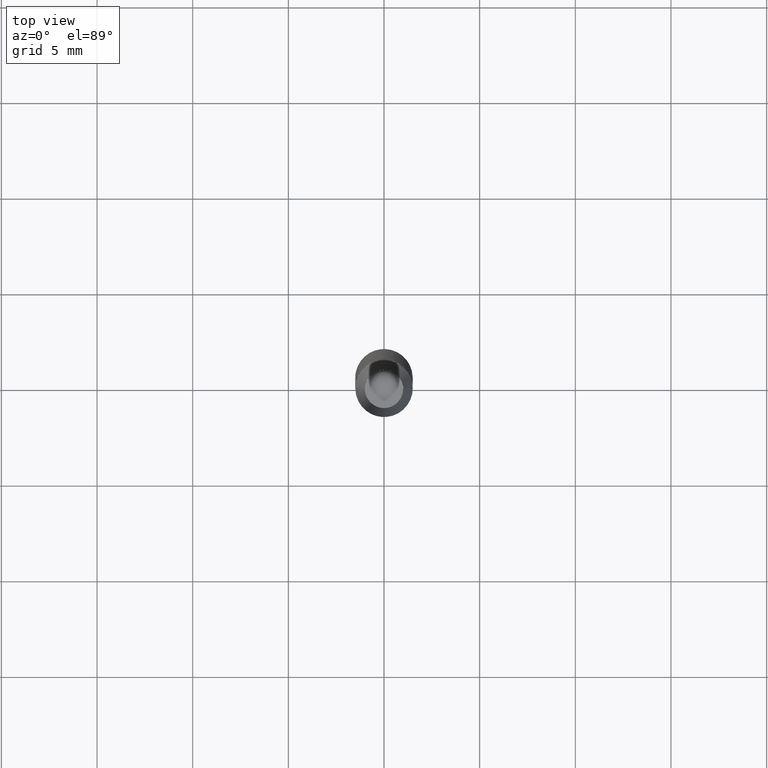
[diagram: clean part render]
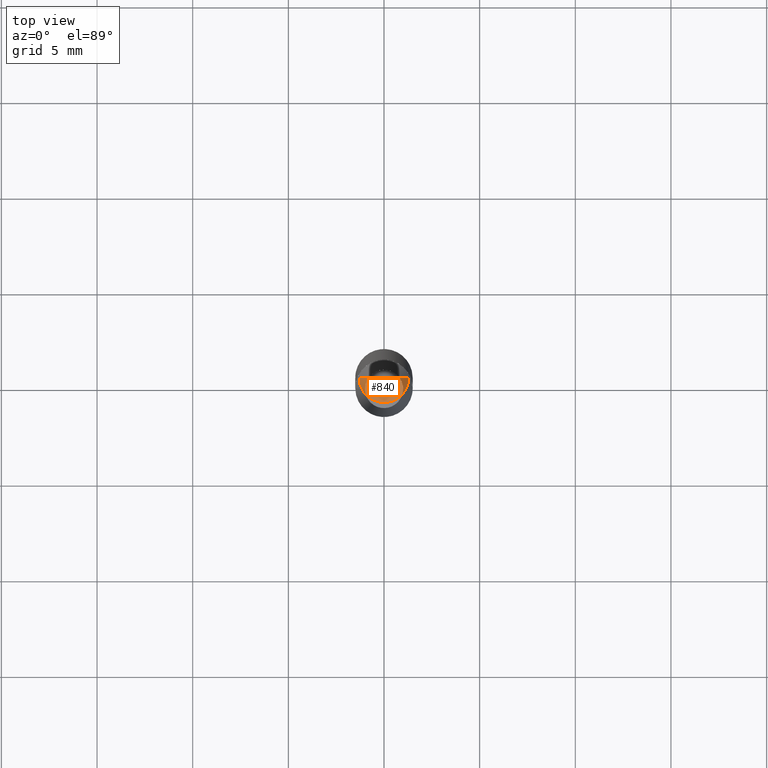
[diagram: same view with one face highlighted and labeled with its STEP entity id]
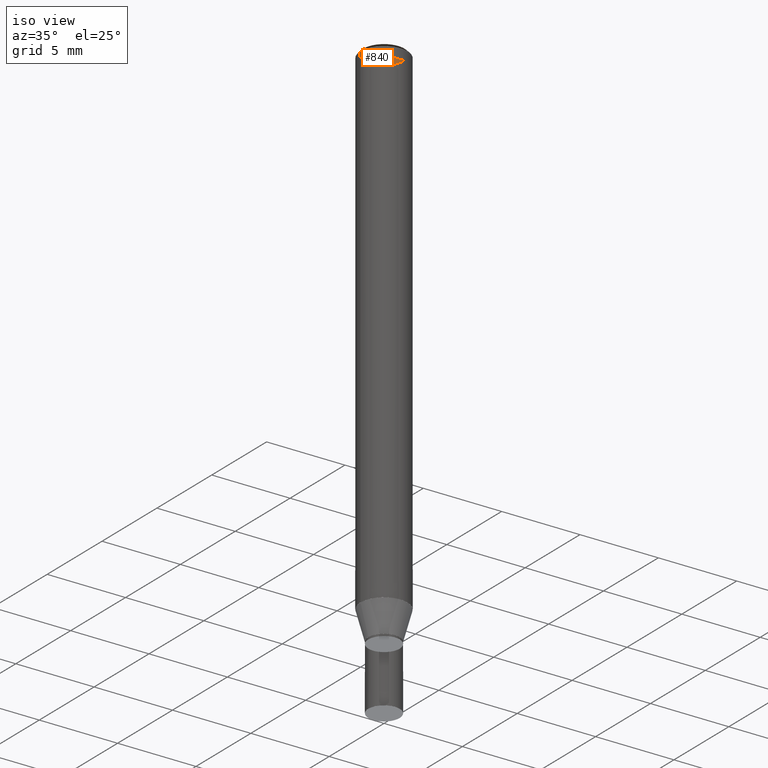
[diagram: same view with one face highlighted and labeled with its STEP entity id]
A machine part, top view. The second image highlights one B-rep face of the part: STEP entity #840.
A second angle (iso view) of the same face is appended — the face is thin or edge-on in the first view.
In plain terms, the highlighted face is a freeform B-spline surface patch.
Its self-contained STEP definition (entity closure, byte-faithful):
#485=CARTESIAN_POINT('',(1.3,0.0,32.0));
#489=CARTESIAN_POINT('',(-1.3,0.0,32.0));
#490=CARTESIAN_POINT('',(0.0,0.0,32.0));
#500=CARTESIAN_POINT('',(-1.3,-1.3,32.0));
#501=CARTESIAN_POINT('',(0.0,-1.3,32.0));
#502=CARTESIAN_POINT('',(1.3,-1.3,32.0));
#825=(
BOUNDED_SURFACE()
B_SPLINE_SURFACE(1,2,(
(#489,#500,#501,#502,#485),
(#490,#490,#490,#490,#490)
), .UNSPECIFIED.,.F.,.F.,.F.)
B_SPLINE_SURFACE_WITH_KNOTS((2,2),(3,2,3),(
0.0,1.0),(
0.0,0.5,1.0), .UNSPECIFIED.)
GEOMETRIC_REPRESENTATION_ITEM()
RATIONAL_B_SPLINE_SURFACE(((1.0,0.707106781187,1.0,0.707106781187,1.0),
(1.0,0.707106781187,1.0,0.707106781187,1.0)
))
REPRESENTATION_ITEM('')
SURFACE()
);
#826=(
BOUNDED_CURVE()
B_SPLINE_CURVE(2,(#485,#502,#501,#500,#489),.UNSPECIFIED.,.F.,.F.)
B_SPLINE_CURVE_WITH_KNOTS((3,2,3),
(0.0,0.5,1.0),.UNSPECIFIED.)
CURVE()
GEOMETRIC_REPRESENTATION_ITEM()
RATIONAL_B_SPLINE_CURVE((1.0,0.707106781187,1.0,0.707106781187,1.0))
REPRESENTATION_ITEM('')
);
#827=(
BOUNDED_CURVE()
B_SPLINE_CURVE(1,(#489,#490),.UNSPECIFIED.,.F.,.F.)
B_SPLINE_CURVE_WITH_KNOTS((2,2),
(0.0,1.0),.UNSPECIFIED.)
CURVE()
GEOMETRIC_REPRESENTATION_ITEM()
RATIONAL_B_SPLINE_CURVE((1.0,1.0))
REPRESENTATION_ITEM('')
);
#828=(
BOUNDED_CURVE()
B_SPLINE_CURVE(1,(#490,#485),.UNSPECIFIED.,.F.,.F.)
B_SPLINE_CURVE_WITH_KNOTS((2,2),
(0.0,1.0),.UNSPECIFIED.)
CURVE()
GEOMETRIC_REPRESENTATION_ITEM()
RATIONAL_B_SPLINE_CURVE((1.0,1.0))
REPRESENTATION_ITEM('')
);
#829=VERTEX_POINT('',#485);
#830=VERTEX_POINT('',#489);
#831=VERTEX_POINT('',#490);
#832=EDGE_CURVE('',#829,#830,#826,.T.);
#833=EDGE_CURVE('',#830,#831,#827,.T.);
#834=EDGE_CURVE('',#831,#829,#828,.T.);
#835=ORIENTED_EDGE('',*,*,#832,.T.);
#836=ORIENTED_EDGE('',*,*,#833,.T.);
#837=ORIENTED_EDGE('',*,*,#834,.T.);
#838=EDGE_LOOP('',(#835,#836,#837));
#839=FACE_OUTER_BOUND('',#838,.T.);
#840=ADVANCED_FACE('',(#839),#825,.T.);